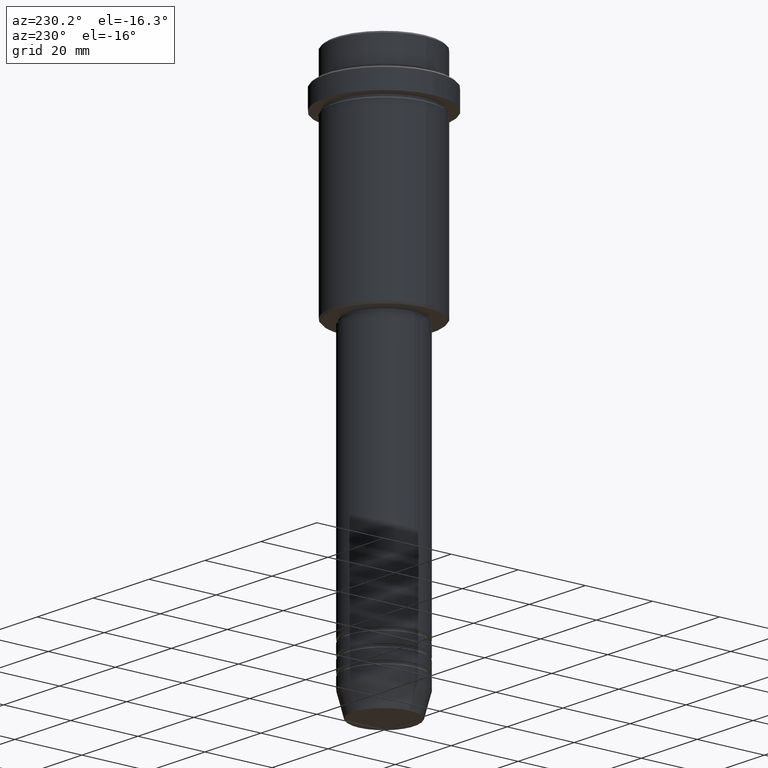
[diagram: clean part render]
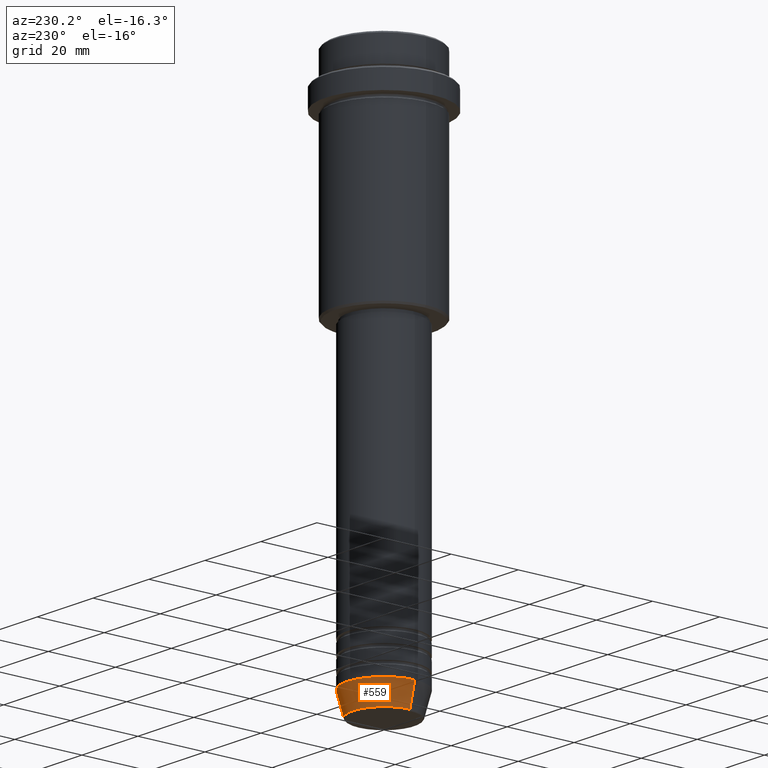
[diagram: same view with one face highlighted and labeled with its STEP entity id]
A machine part, auxiliary view. The second image highlights one B-rep face of the part: STEP entity #559.
In plain terms, the highlighted conical surface has half-angle 15 deg.
Its self-contained STEP definition (entity closure, byte-faithful):
#9 = CARTESIAN_POINT ( 'NONE',  ( 0.000000000000000000, 0.000000000000000000, -153.0000000000000000 ) ) ;
#48 = DIRECTION ( 'NONE',  ( 0.2588190451025213501, 0.000000000000000000, 0.9659258262890680902 ) ) ;
#56 = CARTESIAN_POINT ( 'NONE',  ( 11.00000000000000000, 0.000000000000000000, -153.0000000000000000 ) ) ;
#215 = CARTESIAN_POINT ( 'NONE',  ( -11.00000000000000000, 1.347111479062088405E-15, -153.0000000000000000 ) ) ;
#244 = CARTESIAN_POINT ( 'NONE',  ( 0.000000000000000000, 0.000000000000000000, -159.6294095225512422 ) ) ;
#332 = VERTEX_POINT ( 'NONE', #668 ) ;
#386 = CARTESIAN_POINT ( 'NONE',  ( 0.000000000000000000, 0.000000000000000000, -153.0000000000000000 ) ) ;
#453 = DIRECTION ( 'NONE',  ( 1.000000000000000000, 0.000000000000000000, 0.000000000000000000 ) ) ;
#456 = LINE ( 'NONE', #56, #1152 ) ;
#459 = EDGE_CURVE ( 'NONE', #479, #1320, #456, .T. ) ;
#479 = VERTEX_POINT ( 'NONE', #878 ) ;
#484 = DIRECTION ( 'NONE',  ( 1.000000000000000000, 0.000000000000000000, 0.000000000000000000 ) ) ;
#497 = CIRCLE ( 'NONE', #1202, 11.00000000000000000 ) ;
#542 = VECTOR ( 'NONE', #1287, 1000.000000000000000 ) ;
#556 = FACE_OUTER_BOUND ( 'NONE', #1082, .T. ) ;
#559 = ADVANCED_FACE ( 'NONE', ( #556 ), #578, .T. ) ;
#578 = CONICAL_SURFACE ( 'NONE', #1341, 11.00000000000000000, 0.2617993877991500740 ) ;
#607 = ORIENTED_EDGE ( 'NONE', *, *, #821, .F. ) ;
#614 = CARTESIAN_POINT ( 'NONE',  ( 11.00000000000000000, 0.000000000000000000, -153.0000000000000000 ) ) ;
#668 = CARTESIAN_POINT ( 'NONE',  ( -9.223655072137189492, 1.238341722557647202E-15, -159.6294095225512422 ) ) ;
#675 = DIRECTION ( 'NONE',  ( 1.000000000000000000, 0.000000000000000000, 0.000000000000000000 ) ) ;
#678 = DIRECTION ( 'NONE',  ( -0.000000000000000000, -0.000000000000000000, 1.000000000000000000 ) ) ;
#705 = VERTEX_POINT ( 'NONE', #1246 ) ;
#797 = DIRECTION ( 'NONE',  ( -0.000000000000000000, -0.000000000000000000, 1.000000000000000000 ) ) ;
#821 = EDGE_CURVE ( 'NONE', #1320, #705, #497, .T. ) ;
#878 = CARTESIAN_POINT ( 'NONE',  ( 9.223655072137189492, 0.000000000000000000, -159.6294095225512422 ) ) ;
#918 = DIRECTION ( 'NONE',  ( -0.000000000000000000, -0.000000000000000000, 1.000000000000000000 ) ) ;
#921 = ORIENTED_EDGE ( 'NONE', *, *, #1104, .T. ) ;
#1082 = EDGE_LOOP ( 'NONE', ( #921, #1088, #607, #1147 ) ) ;
#1088 = ORIENTED_EDGE ( 'NONE', *, *, #1335, .T. ) ;
#1104 = EDGE_CURVE ( 'NONE', #479, #332, #1114, .T. ) ;
#1114 = CIRCLE ( 'NONE', #1133, 9.223655072137189492 ) ;
#1133 = AXIS2_PLACEMENT_3D ( 'NONE', #244, #678, #675 ) ;
#1147 = ORIENTED_EDGE ( 'NONE', *, *, #459, .F. ) ;
#1152 = VECTOR ( 'NONE', #48, 1000.000000000000000 ) ;
#1202 = AXIS2_PLACEMENT_3D ( 'NONE', #386, #918, #484 ) ;
#1246 = CARTESIAN_POINT ( 'NONE',  ( -11.00000000000000000, 1.347111479062088405E-15, -153.0000000000000000 ) ) ;
#1282 = LINE ( 'NONE', #215, #542 ) ;
#1287 = DIRECTION ( 'NONE',  ( -0.2588190451025213501, 3.169619151431772337E-17, 0.9659258262890680902 ) ) ;
#1320 = VERTEX_POINT ( 'NONE', #614 ) ;
#1335 = EDGE_CURVE ( 'NONE', #332, #705, #1282, .T. ) ;
#1341 = AXIS2_PLACEMENT_3D ( 'NONE', #9, #797, #453 ) ;